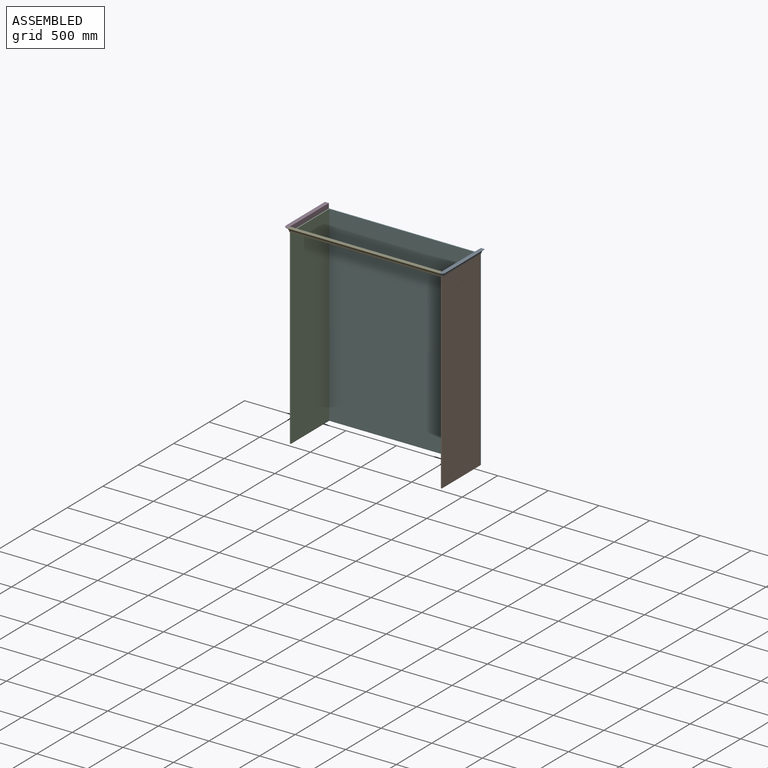
[diagram: assembled view]
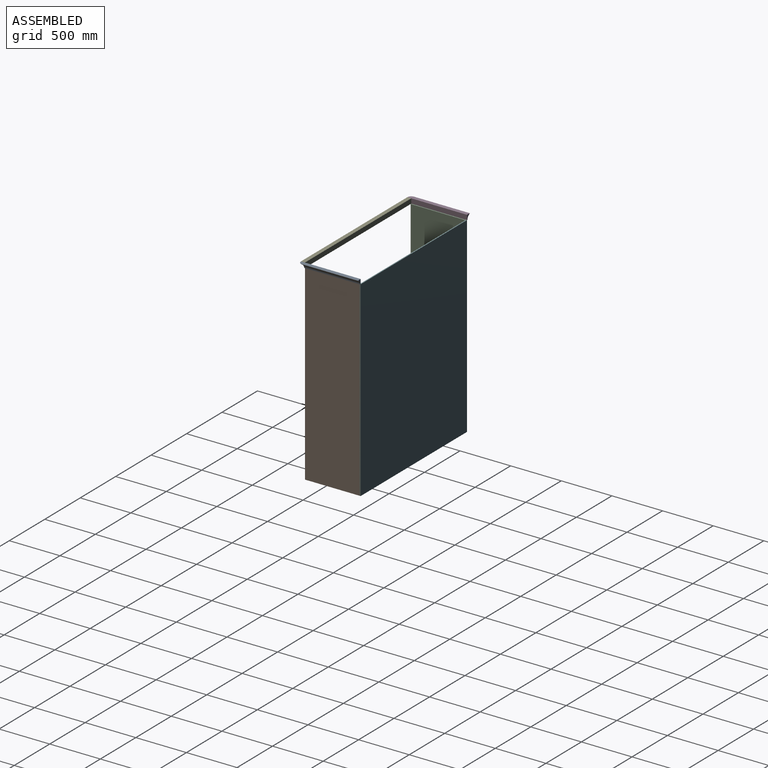
[diagram: assembled view, second angle]
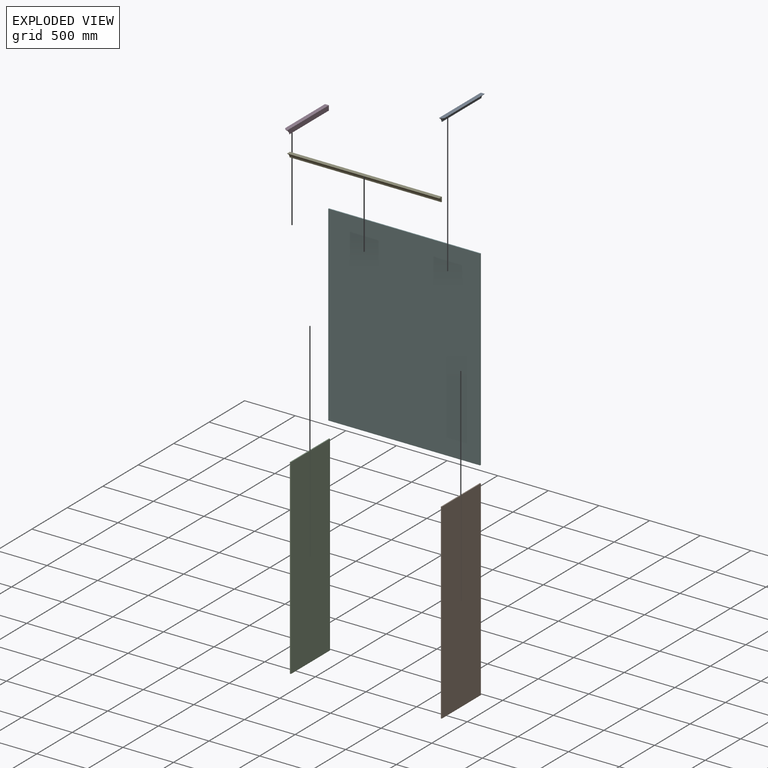
[diagram: exploded view]
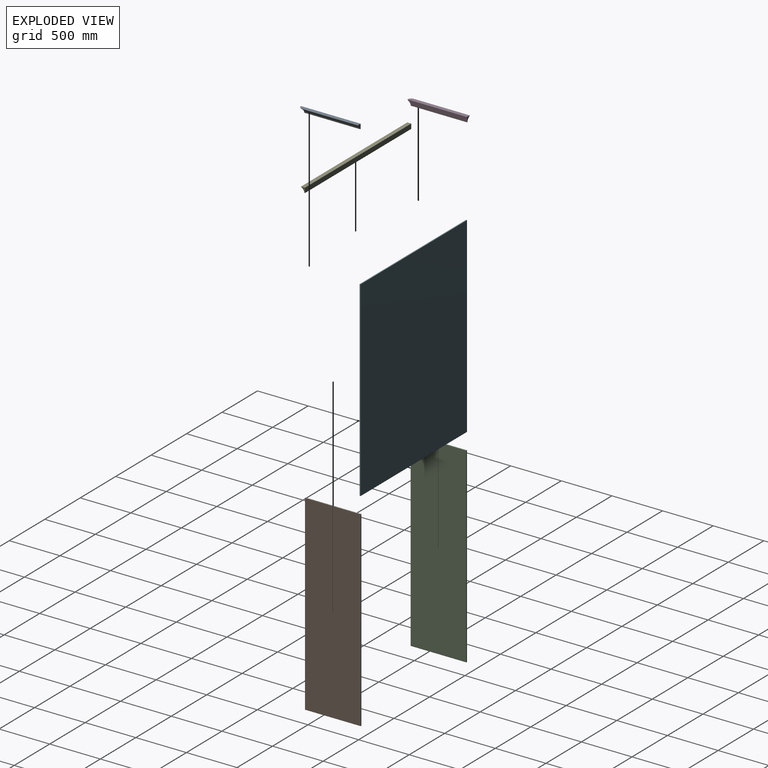
[diagram: exploded view, second angle]
ASSEMBLY  parts=6 mates=5
PART A: 11 faces, bbox 57.2x607.2x52.3 mm
  f0: plane 589x47.32mm, normal (-1,0,0), area 26849.6mm2, adj f1,f4,f6,f7,f8,f9,f10
  f1: plane 555.71x5.71mm, normal (0,0,-1), area 3168.4mm2, adj f0,f2,f7,f8
  f2: cylinder r=47.27mm len=550mm, axis (0,1,0), area 27532.8mm2, adj f1,f3,f7,f8
  f3: plane 550x4.03mm, normal (1,0,0), area 2218.7mm2, adj f2,f4,f7,f9
  f4: plane 585.73x35.73mm, normal (0,0,-1), area 1937mm2, adj f0,f3,f5,f7,f9,f10
  f5: cylinder r=3.27mm len=550mm, axis (0,1,0), area 3102mm2, adj f4,f6,f7,f10
  f6: plane 588.96x38.96mm, normal (0,0,1), area 22623mm2, adj f0,f5,f7,f10
  f7: plane 47.32x39mm, normal (0,1,0), area 822.4mm2, adj f0,f1,f2,f3,f4,f5,f6
  f8: torus R=52.88mm, axis (0,0,1), area 1223.8mm2, adj f0,f1,f2,f9
  f9: cylinder r=32.52mm len=32.52mm, axis (0,0,1), area 206.1mm2, adj f0,f3,f4,f8
  f10: torus R=35.73mm, axis (0,0,1), area 335.9mm2, adj f0,f4,f5,f6
PART B: 6 faces, bbox 550x10x1890 mm
  f0: plane 1890x10mm, normal (-1,0,0), area 18900mm2, adj f1,f3,f4,f5
  f1: plane 550x10mm, normal (0,0,-1), area 5500mm2, adj f0,f2,f4,f5
  f2: plane 1890x10mm, normal (1,0,0), area 18900mm2, adj f1,f3,f4,f5
  f3: plane 550x10mm, normal (0,0,1), area 5500mm2, adj f0,f2,f4,f5
  f4: plane 1890x550mm, normal (0,-1,0), area 1039500mm2, adj f0,f1,f2,f3
  f5: plane 1890x550mm, normal (0,1,0), area 1039500mm2, adj f0,f1,f2,f3
PART C: same geometry as B
PART D: 11 faces, bbox 57.2x607.2x50.5 mm
  f0: cylinder r=47.27mm len=550mm, axis (0,1,0), area 27532.8mm2, adj f1,f6,f7,f8
  f1: plane 555.71x5.71mm, normal (0,0,-1), area 3168.4mm2, adj f0,f2,f7,f8
  f2: plane 589x47.32mm, normal (1,0,0), area 26849.6mm2, adj f1,f3,f5,f7,f8,f9,f10
  f3: plane 588.96x38.96mm, normal (0,0,1), area 22623mm2, adj f2,f4,f7,f9
  f4: cylinder r=3.27mm len=550mm, axis (0,1,0), area 3102mm2, adj f3,f5,f7,f9
  f5: plane 585.73x35.73mm, normal (0,0,-1), area 1937mm2, adj f2,f4,f6,f7,f9,f10
  f6: plane 550x4.03mm, normal (-1,0,0), area 2218.7mm2, adj f0,f5,f7,f10
  f7: plane 47.32x39mm, normal (0,1,0), area 822.4mm2, adj f0,f1,f2,f3,f4,f5,f6
  f8: torus R=52.88mm, axis (0,0,-1), area 1223.8mm2, adj f0,f1,f2,f10
  f9: torus R=35.73mm, axis (0,0,-1), area 335.9mm2, adj f2,f3,f4,f5
  f10: cylinder r=32.52mm len=32.52mm, axis (0,0,-1), area 206.1mm2, adj f2,f5,f6,f8
PART E: 9 faces, bbox 1500x39x47.3 mm
  f0: cylinder r=47.27mm len=1500mm, axis (-1,0,0), area 75089.3mm2, adj f1,f6,f7,f8
  f1: plane 1500x5.71mm, normal (0,0,-1), area 8571.3mm2, adj f0,f2,f7,f8
  f2: plane 1500x47.32mm, normal (0,1,0), area 70983.4mm2, adj f1,f3,f7,f8
  f3: plane 1500x38.96mm, normal (0,0,1), area 58446.9mm2, adj f2,f4,f7,f8
  f4: cylinder r=3.27mm len=1500mm, axis (-1,0,0), area 8459.9mm2, adj f3,f5,f7,f8
  f5: plane 1500x3.21mm, normal (0,0,-1), area 4813.5mm2, adj f4,f6,f7,f8
  f6: plane 1500x4.03mm, normal (0,-1,0), area 6051.1mm2, adj f0,f5,f7,f8
  f7: plane 47.32x39mm, normal (1,0,0), area 822.4mm2, adj f0,f1,f2,f3,f4,f5,f6
  f8: plane 47.32x39mm, normal (-1,0,0), area 822.4mm2, adj f0,f1,f2,f3,f4,f5,f6
PART F: 6 faces, bbox 1500x10x1890 mm
  f0: plane 1890x10mm, normal (-1,0,0), area 18900mm2, adj f1,f3,f4,f5
  f1: plane 1500x10mm, normal (0,0,-1), area 15000mm2, adj f0,f2,f4,f5
  f2: plane 1890x10mm, normal (1,0,0), area 18900mm2, adj f1,f3,f4,f5
  f3: plane 1500x10mm, normal (0,0,1), area 15000mm2, adj f0,f2,f4,f5
  f4: plane 1890x1500mm, normal (0,-1,0), area 2835000mm2, adj f0,f1,f2,f3
  f5: plane 1890x1500mm, normal (0,1,0), area 2835000mm2, adj f0,f1,f2,f3
PLACE A t=(2753.81,422.46,451.16)mm
PLACE B rot(axis=(0,0,-1),90deg) t=(855.59,-1179.07,-579.34)mm
PLACE C rot(axis=(0,0,-1),90deg) t=(-634.41,-1179.07,-579.34)mm
PLACE D rot(axis=(0.27,0.49,0.83),0deg) t=(-674.71,422.46,588.51)mm
PLACE E t=(-654.41,855.99,-287.59)mm
PLACE F t=(85.61,412.46,-524.03)mm
MATE fastened F.f3 <-> A.f1  axis (0,0,1) through (845.59,412.46,556.63)mm
MATE fastened E.f3 <-> A.f6  axis (0,0,1) through (845.59,-176.51,603.95)mm
MATE fastened F.f3 <-> C.f3  axis (0,0,1) through (-654.41,412.46,556.63)mm
MATE fastened C.f3 <-> D.f1  axis (0,0,1) through (-654.41,412.46,556.63)mm
MATE fastened B.f3 <-> F.f3  axis (0,0,-1) through (845.59,412.46,556.63)mm
